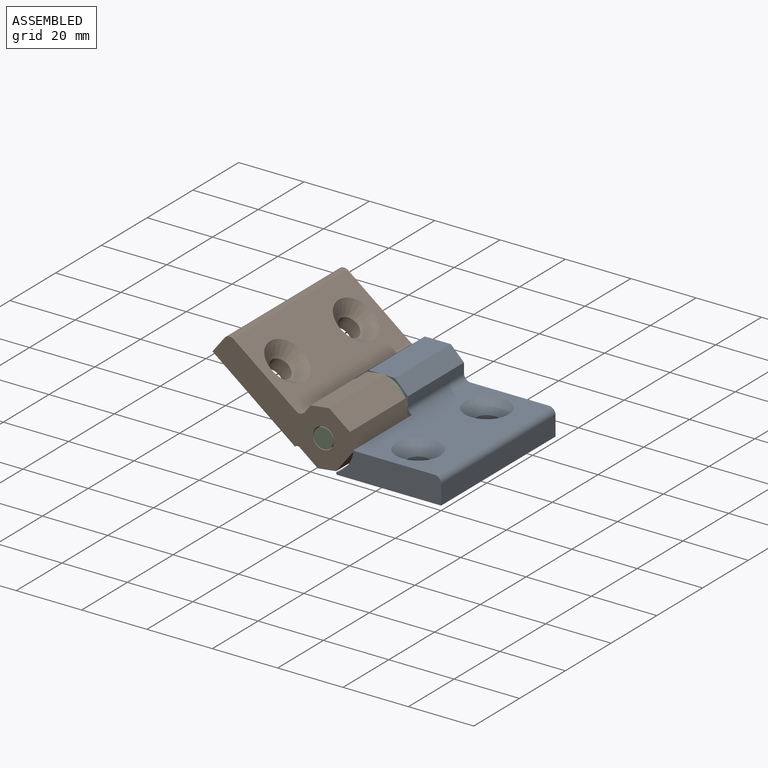
[diagram: assembled view]
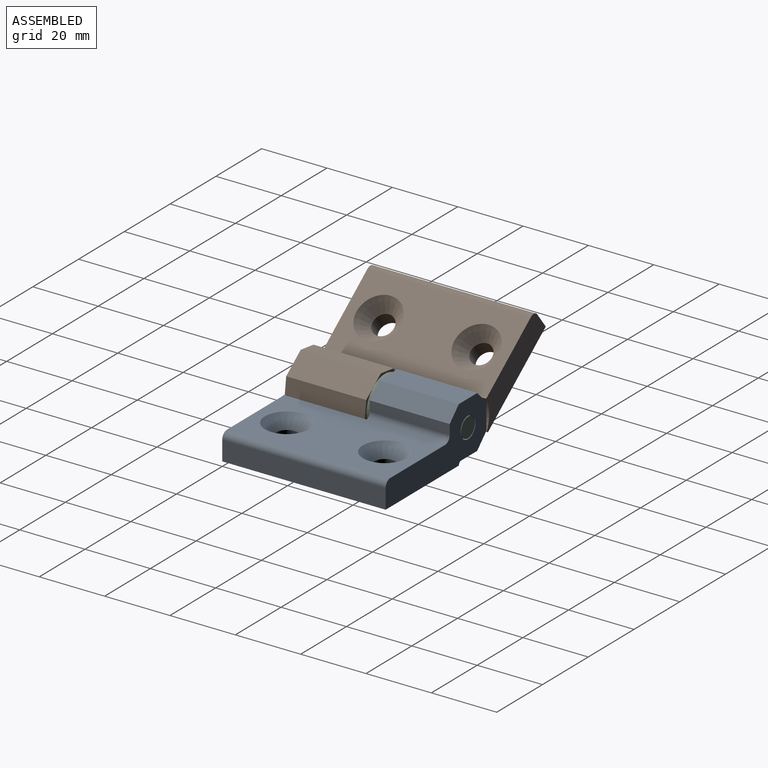
[diagram: assembled view, second angle]
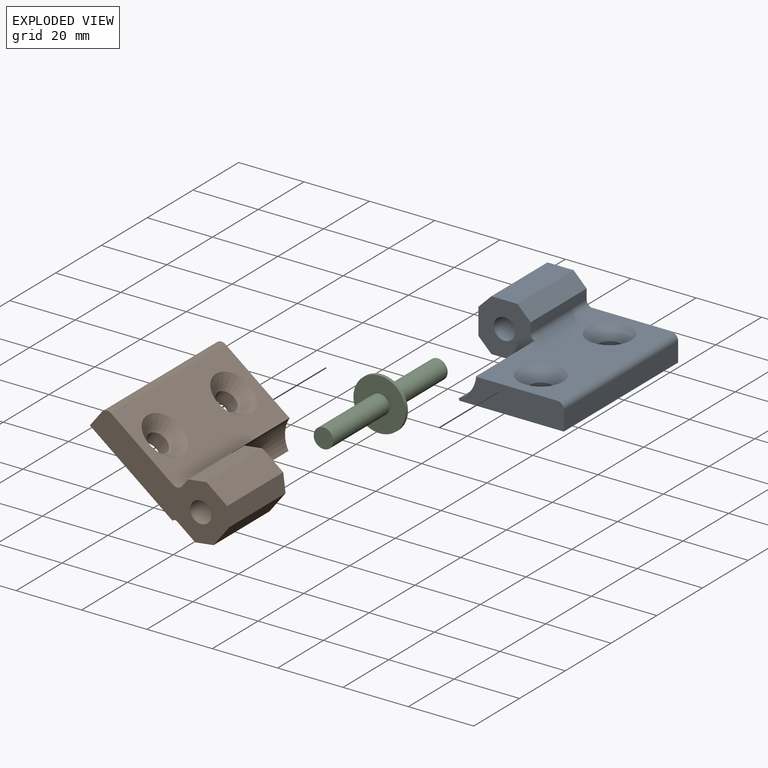
[diagram: exploded view]
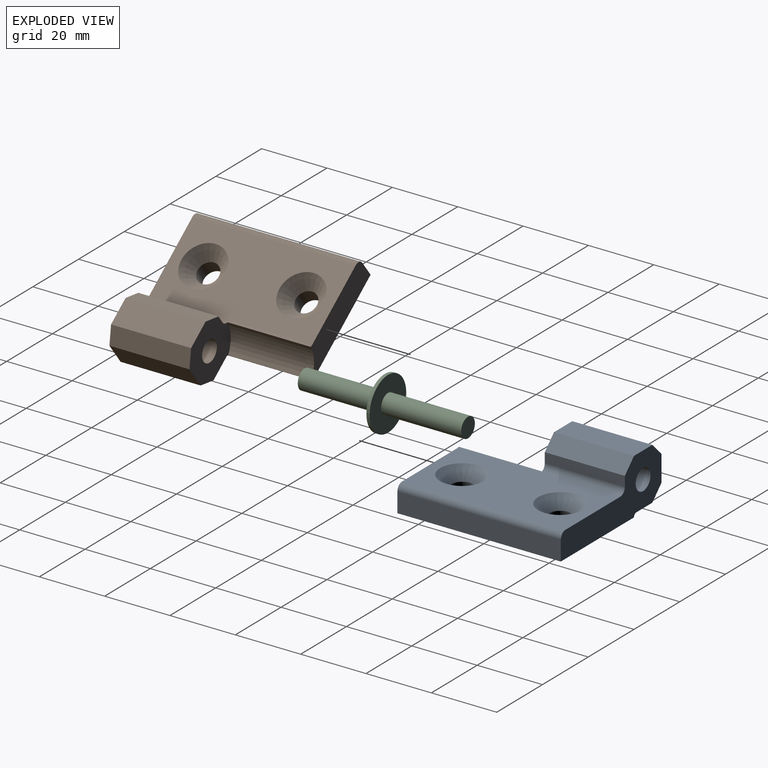
[diagram: exploded view, second angle]
ASSEMBLY  parts=3 mates=4
PART A: 22 faces, bbox 44x17x50 mm
  f0: cone r=5mm half-angle=45deg, axis (0,1,0), area 155.5mm2, adj f4,f15
  f1: cone r=5mm half-angle=45deg, axis (0,1,0), area 155.5mm2, adj f4,f16
  f2: cylinder r=3.25mm len=24.5mm, axis (0,0,1), area 500.3mm2, adj f14,f19
  f3: cylinder r=2mm len=50mm, axis (0,0,1), area 157.1mm2, adj f4,f17,f18,f19
  f4: plane 50x24mm, normal (0,1,0), area 913.7mm2, adj f0,f1,f3,f5,f17,f19
  f5: cylinder r=2mm len=50mm, axis (0,0,1), area 97.6mm2, adj f4,f6,f12,f14,f17,f19
  f6: plane 24.5x3mm, normal (1,0,0), area 73.5mm2, adj f5,f7,f14,f19
  f7: plane 24.5x4mm, normal (0.71,0.71,0), area 138.6mm2, adj f6,f8,f14,f19
  f8: plane 24.5x8mm, normal (0,1,0), area 196mm2, adj f7,f9,f14,f19
  f9: plane 24.5x4mm, normal (-0.71,0.71,0), area 138.6mm2, adj f8,f10,f14,f19
  f10: plane 24.5x8mm, normal (-1,0,0), area 196mm2, adj f9,f11,f14,f19
  f11: plane 24.5x4mm, normal (-0.71,-0.71,0), area 138.6mm2, adj f10,f13,f14,f19
  f12: cylinder r=9.25mm len=25.5mm, axis (0,0,1), area 248.7mm2, adj f5,f14,f17,f20
  f13: plane 24.5x7mm, normal (0,-1,0), area 171.5mm2, adj f11,f14,f19,f20
  f14: plane 17.21x16.43mm, normal (0,0,1), area 198mm2, adj f2,f5,f6,f7,f8,f9,f10,f11
  f15: cylinder r=3.25mm len=6.5mm, axis (0,1,0), area 91.9mm2, adj f0,f21
  f16: cylinder r=3.25mm len=6.5mm, axis (0,-1,0), area 91.9mm2, adj f1,f21
  f17: plane 32.18x8.16mm, normal (0,0,1), area 229.1mm2, adj f3,f4,f5,f12,f18,f20,f21
  f18: plane 50x6mm, normal (1,0,0), area 300mm2, adj f3,f17,f19,f21
  f19: plane 44x17mm, normal (0,0,-1), area 427mm2, adj f2,f3,f4,f5,f6,f7,f8,f9
  f20: cylinder r=1mm len=50mm, axis (0,0,1), area 54.1mm2, adj f12,f13,f14,f17,f19,f21
  f21: plane 50x32mm, normal (0,-1,0), area 1533.6mm2, adj f15,f16,f17,f18,f19,f20
PART B: same geometry as A
PART C: 7 faces, bbox 16x16x50 mm
  f0: cylinder r=3mm len=24.5mm, axis (0,0,-1), area 461.8mm2, adj f1,f3
  f1: plane 6x6mm, normal (0,0,1), area 28.3mm2, adj f0
  f2: cylinder r=8mm len=16mm, axis (0,0,-1), area 50.3mm2, adj f3,f4
  f3: plane 16x16mm, normal (0,0,1), area 172.8mm2, adj f0,f2
  f4: plane 16x16mm, normal (0,0,-1), area 172.8mm2, adj f2,f6
  f5: plane 6x6mm, normal (0,0,-1), area 28.3mm2, adj f6
  f6: cylinder r=3mm len=24.5mm, axis (0,0,-1), area 461.8mm2, adj f4,f5
PLACE A rot(axis=(1,0,0),90deg) t=(-36,25,9)mm
PLACE B rot(axis=(-0.24,-0.69,-0.69),153.5deg) t=(-36,25,9)mm
PLACE C rot(axis=(0.96,0.21,-0.21),92.5deg) t=(-36,25,9)mm
MATE cylindrical C.f0 <-> A.f2  axis (0,1,0) through (-36,50,9)mm
MATE planar C.f2 <-> A.f2  axis (0,1,0) through (-36,25.5,9)mm
MATE planar C.f2 <-> B.f2  axis (0,-1,0) through (-36,24.5,9)mm
MATE cylindrical C.f0 <-> B.f2  axis (0,-1,0) through (-36,0,9)mm
